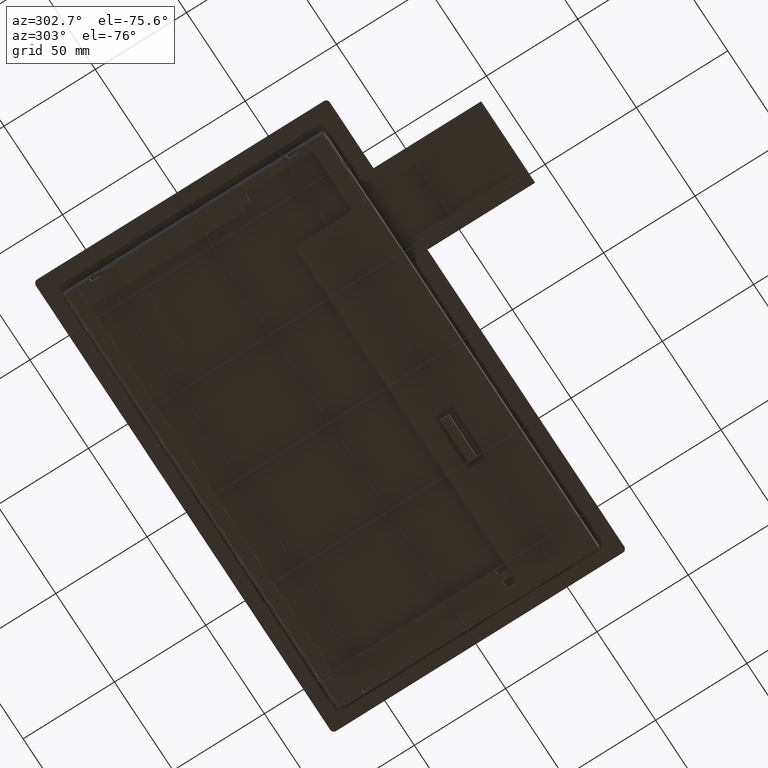
[diagram: clean part render]
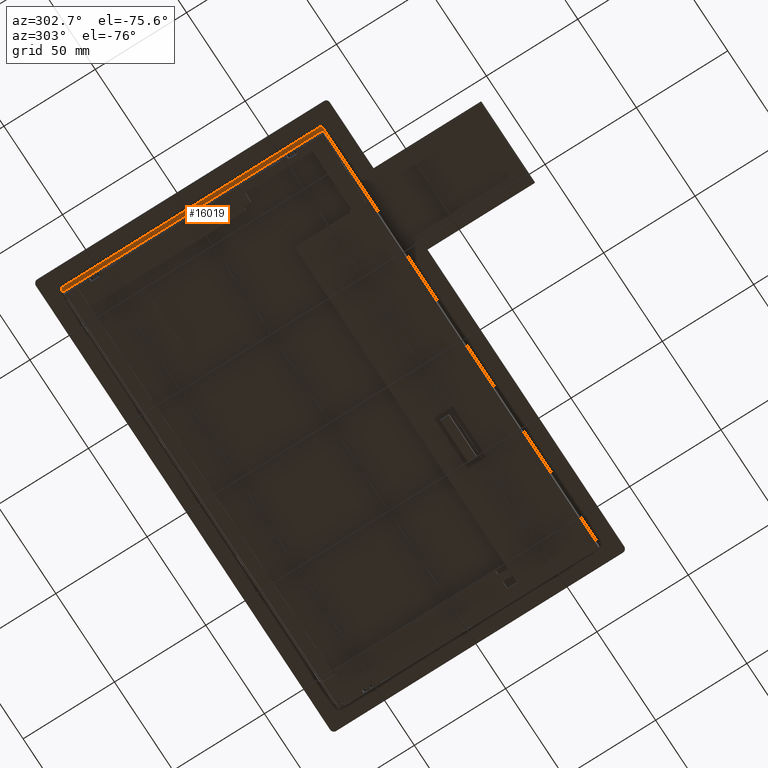
[diagram: same view with one face highlighted and labeled with its STEP entity id]
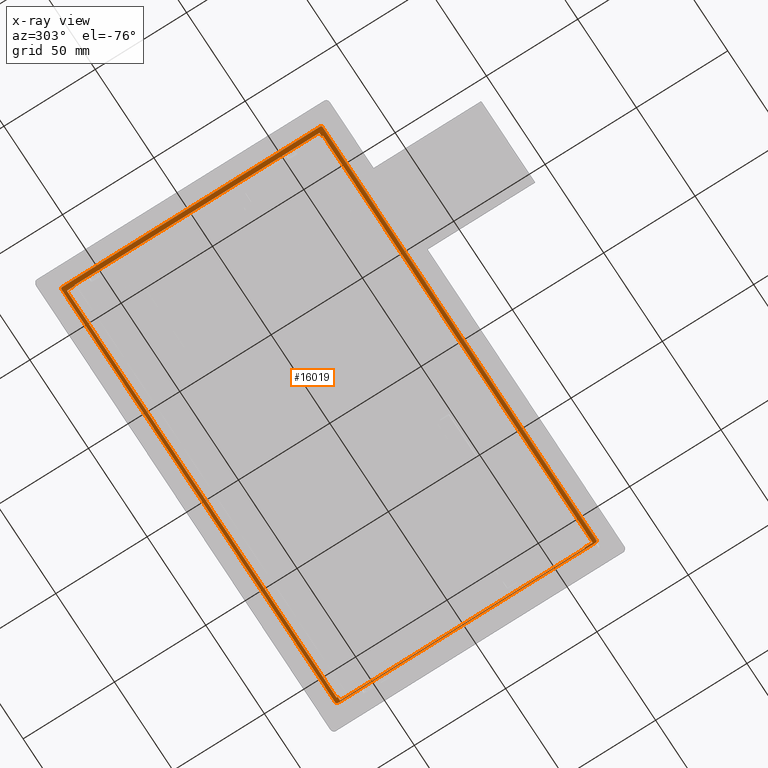
[diagram: x-ray of the same camera — body ghosted, the highlighted face saturated]
A machine part, auxiliary view. The second image highlights one B-rep face of the part: STEP entity #16019.
The next image is the same camera in x-ray: the body ghosted, the highlighted face saturated — about 0% of this face is hidden behind the body in this view.
In plain terms, the highlighted planar face has unit normal (0, -0, -1).
Its self-contained STEP definition (entity closure, byte-faithful):
#47=FACE_BOUND('',#1747,.T.);
#153=PLANE('',#16913);
#885=FACE_OUTER_BOUND('',#1746,.T.);
#1746=EDGE_LOOP('',(#11181,#11182,#11183,#11184,#11185,#11186,#11187,#11188));
#1747=EDGE_LOOP('',(#11189,#11190,#11191,#11192,#11193,#11194,#11195,#11196,
#11197,#11198,#11199,#11200));
#2711=LINE('',#22400,#4832);
#2712=LINE('',#22403,#4833);
#2715=LINE('',#22409,#4836);
#2718=LINE('',#22418,#4839);
#2719=LINE('',#22422,#4840);
#2720=LINE('',#22426,#4841);
#2721=LINE('',#22429,#4842);
#2722=LINE('',#22431,#4843);
#2723=LINE('',#22433,#4844);
#2724=LINE('',#22435,#4845);
#2725=LINE('',#22437,#4846);
#2726=LINE('',#22439,#4847);
#2727=LINE('',#22441,#4848);
#2728=LINE('',#22443,#4849);
#2729=LINE('',#22445,#4850);
#2730=LINE('',#22446,#4851);
#4832=VECTOR('',#18065,10.);
#4833=VECTOR('',#18068,10.);
#4836=VECTOR('',#18073,10.);
#4839=VECTOR('',#18080,233.18);
#4840=VECTOR('',#18083,141.);
#4841=VECTOR('',#18086,233.18);
#4842=VECTOR('',#18089,141.);
#4843=VECTOR('',#18090,10.);
#4844=VECTOR('',#18091,10.);
#4845=VECTOR('',#18092,10.);
#4846=VECTOR('',#18093,10.);
#4847=VECTOR('',#18094,10.);
#4848=VECTOR('',#18095,10.);
#4849=VECTOR('',#18096,10.);
#4850=VECTOR('',#18097,10.);
#4851=VECTOR('',#18098,10.);
#6939=CIRCLE('',#16914,1.);
#6940=CIRCLE('',#16915,1.);
#6941=CIRCLE('',#16916,1.);
#6942=CIRCLE('',#16917,1.);
#7192=VERTEX_POINT('',#22393);
#7195=VERTEX_POINT('',#22398);
#7196=VERTEX_POINT('',#22402);
#7198=VERTEX_POINT('',#22408);
#7200=VERTEX_POINT('',#22414);
#7201=VERTEX_POINT('',#22415);
#7202=VERTEX_POINT('',#22417);
#7203=VERTEX_POINT('',#22419);
#7204=VERTEX_POINT('',#22421);
#7205=VERTEX_POINT('',#22423);
#7206=VERTEX_POINT('',#22425);
#7207=VERTEX_POINT('',#22427);
#7208=VERTEX_POINT('',#22430);
#7209=VERTEX_POINT('',#22432);
#7210=VERTEX_POINT('',#22434);
#7211=VERTEX_POINT('',#22436);
#7212=VERTEX_POINT('',#22438);
#7213=VERTEX_POINT('',#22440);
#7214=VERTEX_POINT('',#22442);
#7215=VERTEX_POINT('',#22444);
#8772=EDGE_CURVE('',#7192,#7195,#2711,.T.);
#8773=EDGE_CURVE('',#7195,#7196,#2712,.T.);
#8776=EDGE_CURVE('',#7196,#7198,#2715,.T.);
#8779=EDGE_CURVE('',#7200,#7201,#6939,.T.);
#8780=EDGE_CURVE('',#7200,#7202,#2718,.T.);
#8781=EDGE_CURVE('',#7203,#7202,#6940,.T.);
#8782=EDGE_CURVE('',#7203,#7204,#2719,.T.);
#8783=EDGE_CURVE('',#7205,#7204,#6941,.T.);
#8784=EDGE_CURVE('',#7205,#7206,#2720,.T.);
#8785=EDGE_CURVE('',#7207,#7206,#6942,.T.);
#8786=EDGE_CURVE('',#7207,#7201,#2721,.T.);
#8787=EDGE_CURVE('',#7198,#7208,#2722,.T.);
#8788=EDGE_CURVE('',#7208,#7209,#2723,.T.);
#8789=EDGE_CURVE('',#7209,#7210,#2724,.T.);
#8790=EDGE_CURVE('',#7210,#7211,#2725,.T.);
#8791=EDGE_CURVE('',#7211,#7212,#2726,.T.);
#8792=EDGE_CURVE('',#7212,#7213,#2727,.T.);
#8793=EDGE_CURVE('',#7213,#7214,#2728,.T.);
#8794=EDGE_CURVE('',#7214,#7215,#2729,.T.);
#8795=EDGE_CURVE('',#7215,#7192,#2730,.T.);
#11181=ORIENTED_EDGE('',*,*,#8779,.F.);
#11182=ORIENTED_EDGE('',*,*,#8780,.T.);
#11183=ORIENTED_EDGE('',*,*,#8781,.F.);
#11184=ORIENTED_EDGE('',*,*,#8782,.T.);
#11185=ORIENTED_EDGE('',*,*,#8783,.F.);
#11186=ORIENTED_EDGE('',*,*,#8784,.T.);
#11187=ORIENTED_EDGE('',*,*,#8785,.F.);
#11188=ORIENTED_EDGE('',*,*,#8786,.T.);
#11189=ORIENTED_EDGE('',*,*,#8776,.T.);
#11190=ORIENTED_EDGE('',*,*,#8787,.T.);
#11191=ORIENTED_EDGE('',*,*,#8788,.T.);
#11192=ORIENTED_EDGE('',*,*,#8789,.T.);
#11193=ORIENTED_EDGE('',*,*,#8790,.T.);
#11194=ORIENTED_EDGE('',*,*,#8791,.T.);
#11195=ORIENTED_EDGE('',*,*,#8792,.T.);
#11196=ORIENTED_EDGE('',*,*,#8793,.T.);
#11197=ORIENTED_EDGE('',*,*,#8794,.T.);
#11198=ORIENTED_EDGE('',*,*,#8795,.T.);
#11199=ORIENTED_EDGE('',*,*,#8772,.T.);
#11200=ORIENTED_EDGE('',*,*,#8773,.T.);
#16019=ADVANCED_FACE('',(#885,#47),#153,.T.);
#16913=AXIS2_PLACEMENT_3D('',#22413,#18076,#18077);
#16914=AXIS2_PLACEMENT_3D('',#22416,#18078,#18079);
#16915=AXIS2_PLACEMENT_3D('',#22420,#18081,#18082);
#16916=AXIS2_PLACEMENT_3D('',#22424,#18084,#18085);
#16917=AXIS2_PLACEMENT_3D('',#22428,#18087,#18088);
#18065=DIRECTION('',(1.,5.14802755103282E-33,1.22309489444525E-16));
#18068=DIRECTION('',(-2.66886550301484E-33,1.,-2.86113138723092E-17));
#18073=DIRECTION('',(-1.,-5.14802755103282E-33,-1.22309489444525E-16));
#18076=DIRECTION('center_axis',(1.22309489444525E-16,-2.86113138723092E-17,
-1.));
#18077=DIRECTION('ref_axis',(-1.,-5.55111512312586E-17,-1.22309489444525E-16));
#18078=DIRECTION('center_axis',(-1.22309489444525E-16,2.86113138723092E-17,
1.));
#18079=DIRECTION('ref_axis',(1.,5.55111512312586E-17,1.22309489444525E-16));
#18080=DIRECTION('',(1.,5.55111512312586E-17,1.22309489444525E-16));
#18081=DIRECTION('center_axis',(-1.22309489444525E-16,2.86113138723092E-17,
1.));
#18082=DIRECTION('ref_axis',(1.,5.55111512312586E-17,1.22309489444525E-16));
#18083=DIRECTION('',(5.55111512312586E-17,-1.,2.86113138723092E-17));
#18084=DIRECTION('center_axis',(-1.22309489444525E-16,2.86113138723092E-17,
1.));
#18085=DIRECTION('ref_axis',(1.,5.55111512312586E-17,1.22309489444525E-16));
#18086=DIRECTION('',(-1.,-5.55111512312586E-17,-1.22309489444525E-16));
#18087=DIRECTION('center_axis',(-1.22309489444525E-16,2.86113138723092E-17,
1.));
#18088=DIRECTION('ref_axis',(1.,5.55111512312586E-17,1.22309489444525E-16));
#18089=DIRECTION('',(-5.55111512312586E-17,1.,-2.86113138723092E-17));
#18090=DIRECTION('',(4.44089209850062E-16,1.,-2.86113138723091E-17));
#18091=DIRECTION('',(-1.,4.44089209850062E-16,-1.22309489444525E-16));
#18092=DIRECTION('',(-4.44089209850062E-16,-1.,2.86113138723091E-17));
#18093=DIRECTION('',(-1.,-3.50104926337081E-33,-1.22309489444525E-16));
#18094=DIRECTION('',(1.61161527964249E-36,-1.,2.86113138723092E-17));
#18095=DIRECTION('',(1.,3.50104926337081E-33,1.22309489444525E-16));
#18096=DIRECTION('',(-4.44089209850062E-16,-1.,2.86113138723091E-17));
#18097=DIRECTION('',(1.,-4.44089209850062E-16,1.22309489444525E-16));
#18098=DIRECTION('',(4.44089209850062E-16,1.,-2.86113138723091E-17));
#22393=CARTESIAN_POINT('',(115.83,-65.0499999999935,-1.49999999999997));
#22398=CARTESIAN_POINT('',(116.17,-65.0499999999936,-1.49999999999997));
#22400=CARTESIAN_POINT('',(58.5399999999999,-65.0499999999936,-1.49999999999952));
#22402=CARTESIAN_POINT('',(116.17,68.9500000000064,-1.49999999999998));
#22403=CARTESIAN_POINT('',(116.17,-1.34999999999677,-1.49999999999951));
#22408=CARTESIAN_POINT('',(114.17,68.9500000000064,-1.49999999999998));
#22409=CARTESIAN_POINT('',(57.5399999999999,68.9500000000064,-1.49999999999952));
#22413=CARTESIAN_POINT('Origin',(0.909999999999945,-71.65,-1.49999999999952));
#22414=CARTESIAN_POINT('',(-117.5,71.35,-1.49999999999956));
#22415=CARTESIAN_POINT('',(-118.5,70.35,-1.49999999999956));
#22416=CARTESIAN_POINT('Origin',(-117.5,70.35,-1.49999999999956));
#22417=CARTESIAN_POINT('',(115.68,71.35,-1.49999999999952));
#22418=CARTESIAN_POINT('',(-117.5,71.35,-1.49999999999956));
#22419=CARTESIAN_POINT('',(116.68,70.35,-1.49999999999952));
#22420=CARTESIAN_POINT('Origin',(115.68,70.35,-1.49999999999952));
#22421=CARTESIAN_POINT('',(116.68,-70.65,-1.49999999999952));
#22422=CARTESIAN_POINT('',(116.68,70.35,-1.49999999999952));
#22423=CARTESIAN_POINT('',(115.68,-71.65,-1.49999999999952));
#22424=CARTESIAN_POINT('Origin',(115.68,-70.65,-1.49999999999952));
#22425=CARTESIAN_POINT('',(-117.5,-71.65,-1.49999999999952));
#22426=CARTESIAN_POINT('',(115.68,-71.65,-1.49999999999952));
#22427=CARTESIAN_POINT('',(-118.5,-70.65,-1.49999999999952));
#22428=CARTESIAN_POINT('Origin',(-117.5,-70.65,-1.49999999999952));
#22429=CARTESIAN_POINT('',(-118.5,-70.65,-1.49999999999952));
#22430=CARTESIAN_POINT('',(114.17,69.5500000000065,-1.49999999999998));
#22431=CARTESIAN_POINT('',(114.17,-1.04999999999677,-1.49999999999951));
#22432=CARTESIAN_POINT('',(-115.83,69.5500000000066,-1.5));
#22433=CARTESIAN_POINT('',(-57.4600000000001,69.5500000000066,-1.49999999999954));
#22434=CARTESIAN_POINT('',(-115.83,65.0500000000066,-1.5));
#22435=CARTESIAN_POINT('',(-115.83,-3.29999999999667,-1.49999999999954));
#22436=CARTESIAN_POINT('',(-116.17,65.0500000000067,-1.5));
#22437=CARTESIAN_POINT('',(-57.63,65.0500000000066,-1.49999999999954));
#22438=CARTESIAN_POINT('',(-116.17,-68.9499999999933,-1.5));
#22439=CARTESIAN_POINT('',(-116.17,-70.2999999999967,-1.49999999999954));
#22440=CARTESIAN_POINT('',(-114.17,-68.9499999999933,-1.5));
#22441=CARTESIAN_POINT('',(-56.63,-68.9499999999933,-1.49999999999953));
#22442=CARTESIAN_POINT('',(-114.17,-69.5499999999934,-1.5));
#22443=CARTESIAN_POINT('',(-114.17,-70.5999999999967,-1.49999999999954));
#22444=CARTESIAN_POINT('',(115.83,-69.5499999999935,-1.49999999999997));
#22445=CARTESIAN_POINT('',(58.3699999999998,-69.5499999999935,-1.49999999999952));
#22446=CARTESIAN_POINT('',(115.83,-68.3499999999968,-1.49999999999951));